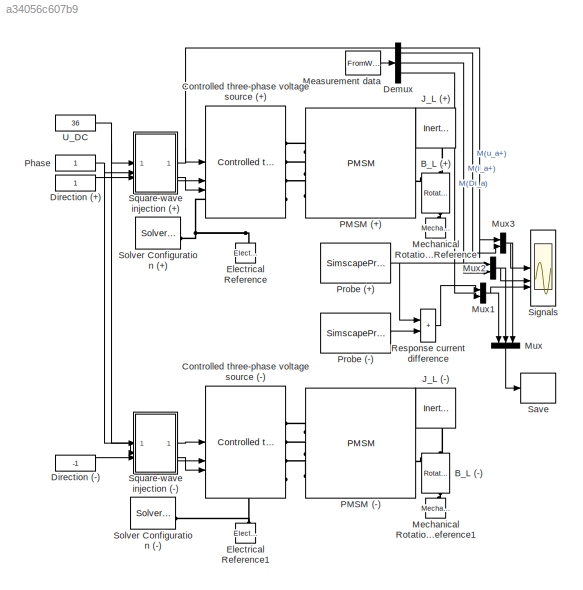
MODEL slx_a34056c607b9
KIND model
CONFIG AbsTol = auto
CONFIG EnableMultiTasking = off
CONFIG FixedStep = auto
CONFIG InitFcn = % Loading the measurement data\nload('MeasurementData.mat', 'PM')
CONFIG MaxStep = 5e-8
CONFIG MinStep = auto
CONFIG RelTol = 1e-5
CONFIG SampleTimeConstraint = Unconstrained
CONFIG SolverName = VariableStepAuto
CONFIG StartTime = 0.0
CONFIG StopTime = 500e-6
BLOCK [Reference] B_L (+)  REF=fl_lib/Mechanical/Rotational Elements/Rotational Damper
  NameLocation = right
  SourceBlock = fl_lib/Mechanical/Rotational Elements/Rotational Damper
  SourceType = Rotational Damper
BLOCK [Reference] B_L (-)  REF=fl_lib/Mechanical/Rotational Elements/Rotational Damper
  NameLocation = right
  SourceBlock = fl_lib/Mechanical/Rotational Elements/Rotational Damper
  SourceType = Rotational Damper
BLOCK [Reference] Controlled three-phase voltage source (+)  REF=SLSS/Power electronics/Controlled three-phase voltage source
  NameLocation = top
  SourceBlock = SLSS/Power electronics/Controlled three-phase voltage source
  SourceType = SubSystem
BLOCK [Reference] Controlled three-phase voltage source (-)  REF=SLSS/Power electronics/Controlled three-phase voltage source
  NameLocation = top
  SourceBlock = SLSS/Power electronics/Controlled three-phase voltage source
  SourceType = SubSystem
BLOCK [Demux] Demux
  Outputs = 3
BLOCK [Constant] Direction (+)
BLOCK [Constant] Direction (-)
  Value = -1
BLOCK [Reference] Electrical Reference  REF=fl_lib/Electrical/Electrical Elements/Electrical Reference
  NameLocation = right
  SourceBlock = fl_lib/Electrical/Electrical Elements/Electrical Reference
  SourceType = Electrical Reference
BLOCK [Reference] Electrical Reference1  REF=fl_lib/Electrical/Electrical Elements/Electrical Reference
  NameLocation = right
  SourceBlock = fl_lib/Electrical/Electrical Elements/Electrical Reference
  SourceType = Electrical Reference
BLOCK [Reference] J_L (+)  REF=fl_lib/Mechanical/Rotational Elements/Inertia
  NameLocation = right
  SourceBlock = fl_lib/Mechanical/Rotational Elements/Inertia
  SourceType = Inertia
BLOCK [Reference] J_L (-)  REF=fl_lib/Mechanical/Rotational Elements/Inertia
  NameLocation = right
  SourceBlock = fl_lib/Mechanical/Rotational Elements/Inertia
  SourceType = Inertia
BLOCK [FromWorkspace] Measurement data
  Interpolate = off
  OutputAfterFinalValue = Setting to zero
  SampleTime = -1
  VariableName = PM
BLOCK [Reference] Mechanical Rotational Reference  REF=fl_lib/Mechanical/Rotational Elements/Mechanical
Rotational Reference
  NameLocation = right
  SourceBlock = fl_lib/Mechanical/Rotational Elements/Mechanical\nRotational Reference
  SourceType = Mechanical\nRotational Reference
BLOCK [Reference] Mechanical Rotational Reference1  REF=fl_lib/Mechanical/Rotational Elements/Mechanical
Rotational Reference
  NameLocation = right
  SourceBlock = fl_lib/Mechanical/Rotational Elements/Mechanical\nRotational Reference
  SourceType = Mechanical\nRotational Reference
BLOCK [Mux] Mux
  DisplayOption = bar
  Inputs = 3
  NameLocation = left
BLOCK [Mux] Mux1
  DisplayOption = bar
  Inputs = 2
BLOCK [Mux] Mux2
  DisplayOption = bar
  Inputs = 2
BLOCK [Mux] Mux3
  DisplayOption = bar
  Inputs = 2
BLOCK [Reference] PMSM (+)  REF=PMSM/PMSM
  SourceBlock = PMSM/PMSM
  SourceType = PMSM
BLOCK [Reference] PMSM (-)  REF=PMSM/PMSM
  SourceBlock = PMSM/PMSM
  SourceType = PMSM
BLOCK [Constant] Phase
  NameLocation = top
BLOCK [SimscapeProbe] Probe (+)
  BoundBlock = 432
  Variables = {i_a}
BLOCK [SimscapeProbe] Probe (-)
  BoundBlock = 433
  Variables = {i_a}
BLOCK [Sum] Response current difference
  IconShape = rectangular
BLOCK [ToWorkspace] Save
  FixptAsFi = on
  MaxDataPoints = inf
  SampleTime = 1/240000
  VariableName = PO
BLOCK [Scope] Signals
  Floating = off
  NumInputPorts = 3
  ScopeSpecificationString = Simulink.scopes.TimeScopeBlockCfg('CurrentConfiguration', extmgr.ConfigurationSet(extmgr.Configuration('Core','General UI',true),extmgr.Configuration('Core','Source UI',true),extmgr.Configuration('Sources','WiredSimulink',true,'DataLoggingVariableName','ScopeData2'),extmgr.Configuration('Visuals','Time Domain',true,'SerializedDisplays',{struct('MinYLimReal','-30.93618','MaxYLimReal','38.42564','YL...<+2895ch>
BLOCK [Reference] Solver Configuration (+)  REF=nesl_utility/Solver
Configuration
  SourceBlock = nesl_utility/Solver\nConfiguration
  SourceType = Solver\nConfiguration
BLOCK [Reference] Solver Configuration (-)  REF=nesl_utility/Solver
Configuration
  SourceBlock = nesl_utility/Solver\nConfiguration
  SourceType = Solver\nConfiguration
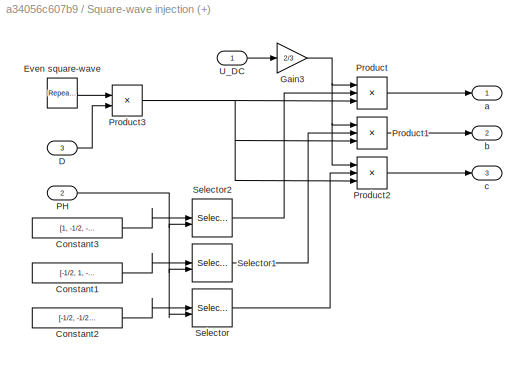
BLOCK [SubSystem] Square-wave injection (+)
  NameLocation = top
BLOCK [Constant] Square-wave injection (+)/Constant1
  Value = [-1/2, 1, -1/2]
BLOCK [Constant] Square-wave injection (+)/Constant2
  Value = [-1/2, -1/2, 1]
BLOCK [Constant] Square-wave injection (+)/Constant3
  Value = [1, -1/2, -1/2]
BLOCK [Inport] Square-wave injection (+)/D
  Port = 3
BLOCK [Reference] Square-wave injection (+)/Even square-wave  REF=simulink/Sources/Repeating
Sequence
  SourceBlock = simulink/Sources/Repeating\nSequence
  SourceType = Repeating table
BLOCK [Gain] Square-wave injection (+)/Gain3
  Gain = 2/3
BLOCK [Inport] Square-wave injection (+)/PH
  Port = 2
BLOCK [Product] Square-wave injection (+)/Product
  Inputs = 3
BLOCK [Product] Square-wave injection (+)/Product1
  Inputs = 3
BLOCK [Product] Square-wave injection (+)/Product2
  Inputs = 3
BLOCK [Product] Square-wave injection (+)/Product3
BLOCK [Selector] Square-wave injection (+)/Selector
  IndexOptions = Index vector (port)
  Indices = [1 3]
  InputPortWidth = 3
  OutputSizes = 1
BLOCK [Selector] Square-wave injection (+)/Selector1
  IndexOptions = Index vector (port)
  Indices = [1 3]
  InputPortWidth = 3
  OutputSizes = 1
BLOCK [Selector] Square-wave injection (+)/Selector2
  IndexOptions = Index vector (port)
  Indices = [1 3]
  InputPortWidth = 3
  OutputSizes = 1
BLOCK [Inport] Square-wave injection (+)/U_DC
BLOCK [Outport] Square-wave injection (+)/a
BLOCK [Outport] Square-wave injection (+)/b
  Port = 2
BLOCK [Outport] Square-wave injection (+)/c
  Port = 3
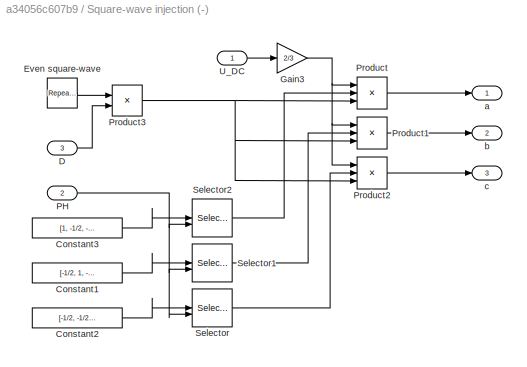
BLOCK [SubSystem] Square-wave injection (-)
  NameLocation = top
BLOCK [Constant] Square-wave injection (-)/Constant1
  Value = [-1/2, 1, -1/2]
BLOCK [Constant] Square-wave injection (-)/Constant2
  Value = [-1/2, -1/2, 1]
BLOCK [Constant] Square-wave injection (-)/Constant3
  Value = [1, -1/2, -1/2]
BLOCK [Inport] Square-wave injection (-)/D
  Port = 3
BLOCK [Reference] Square-wave injection (-)/Even square-wave  REF=simulink/Sources/Repeating
Sequence
  SourceBlock = simulink/Sources/Repeating\nSequence
  SourceType = Repeating table
BLOCK [Gain] Square-wave injection (-)/Gain3
  Gain = 2/3
BLOCK [Inport] Square-wave injection (-)/PH
  Port = 2
BLOCK [Product] Square-wave injection (-)/Product
  Inputs = 3
BLOCK [Product] Square-wave injection (-)/Product1
  Inputs = 3
BLOCK [Product] Square-wave injection (-)/Product2
  Inputs = 3
BLOCK [Product] Square-wave injection (-)/Product3
BLOCK [Selector] Square-wave injection (-)/Selector
  IndexOptions = Index vector (port)
  Indices = [1 3]
  InputPortWidth = 3
  OutputSizes = 1
BLOCK [Selector] Square-wave injection (-)/Selector1
  IndexOptions = Index vector (port)
  Indices = [1 3]
  InputPortWidth = 3
  OutputSizes = 1
BLOCK [Selector] Square-wave injection (-)/Selector2
  IndexOptions = Index vector (port)
  Indices = [1 3]
  InputPortWidth = 3
  OutputSizes = 1
BLOCK [Inport] Square-wave injection (-)/U_DC
BLOCK [Outport] Square-wave injection (-)/a
BLOCK [Outport] Square-wave injection (-)/b
  Port = 2
BLOCK [Outport] Square-wave injection (-)/c
  Port = 3
BLOCK [Constant] U_DC
  NameLocation = top
  Value = 36
LINE Demux:1 -> Mux3:2
LINE Demux:2 -> Mux2:2
LINE Demux:3 -> Mux1:2
LINE Direction (+):1 -> Square-wave injection (+):3
LINE Direction (-):1 -> Square-wave injection (-):3
LINE Measurement data:1 -> Demux:1
NET Mux1:1 -> Mux:1, Signals:3
NET Mux2:1 -> Mux:2, Signals:2
NET Mux3:1 -> Mux:3, Signals:1
LINE Mux:1 -> Save:1
NET Phase:1 -> Square-wave injection (+):2, Square-wave injection (-):2
NET Probe (+):1 -> Mux2:1, Response current difference:1
LINE Probe (-):1 -> Response current difference:2
LINE Response current difference:1 -> Mux1:1
LINE Square-wave injection (+)/Constant1:1 -> Square-wave injection (+)/Selector1:1
LINE Square-wave injection (+)/Constant2:1 -> Square-wave injection (+)/Selector:1
LINE Square-wave injection (+)/Constant3:1 -> Square-wave injection (+)/Selector2:1
LINE Square-wave injection (+)/D:1 -> Square-wave injection (+)/Product3:2
LINE Square-wave injection (+)/Even square-wave:1 -> Square-wave injection (+)/Product3:1
NET Square-wave injection (+)/Gain3:1 -> Square-wave injection (+)/Product1:1, Square-wave injection (+)/Product2:1, Square-wave injection (+)/Product:1
NET Square-wave injection (+)/PH:1 -> Square-wave injection (+)/Selector1:2, Square-wave injection (+)/Selector2:2, Square-wave injection (+)/Selector:2
LINE Square-wave injection (+)/Product1:1 -> Square-wave injection (+)/b:1
LINE Square-wave injection (+)/Product2:1 -> Square-wave injection (+)/c:1
NET Square-wave injection (+)/Product3:1 -> Square-wave injection (+)/Product1:3, Square-wave injection (+)/Product2:3, Square-wave injection (+)/Product:3
LINE Square-wave injection (+)/Product:1 -> Square-wave injection (+)/a:1
LINE Square-wave injection (+)/Selector1:1 -> Square-wave injection (+)/Product1:2
LINE Square-wave injection (+)/Selector2:1 -> Square-wave injection (+)/Product:2
LINE Square-wave injection (+)/Selector:1 -> Square-wave injection (+)/Product2:2
LINE Square-wave injection (+)/U_DC:1 -> Square-wave injection (+)/Gain3:1
NET Square-wave injection (+):1 -> Controlled three-phase voltage source (+):1, Mux3:1
LINE Square-wave injection (+):2 -> Controlled three-phase voltage source (+):2
LINE Square-wave injection (+):3 -> Controlled three-phase voltage source (+):3
LINE Square-wave injection (-)/Constant1:1 -> Square-wave injection (-)/Selector1:1
LINE Square-wave injection (-)/Constant2:1 -> Square-wave injection (-)/Selector:1
LINE Square-wave injection (-)/Constant3:1 -> Square-wave injection (-)/Selector2:1
LINE Square-wave injection (-)/D:1 -> Square-wave injection (-)/Product3:2
LINE Square-wave injection (-)/Even square-wave:1 -> Square-wave injection (-)/Product3:1
NET Square-wave injection (-)/Gain3:1 -> Square-wave injection (-)/Product1:1, Square-wave injection (-)/Product2:1, Square-wave injection (-)/Product:1
NET Square-wave injection (-)/PH:1 -> Square-wave injection (-)/Selector1:2, Square-wave injection (-)/Selector2:2, Square-wave injection (-)/Selector:2
LINE Square-wave injection (-)/Product1:1 -> Square-wave injection (-)/b:1
LINE Square-wave injection (-)/Product2:1 -> Square-wave injection (-)/c:1
NET Square-wave injection (-)/Product3:1 -> Square-wave injection (-)/Product1:3, Square-wave injection (-)/Product2:3, Square-wave injection (-)/Product:3
LINE Square-wave injection (-)/Product:1 -> Square-wave injection (-)/a:1
LINE Square-wave injection (-)/Selector1:1 -> Square-wave injection (-)/Product1:2
LINE Square-wave injection (-)/Selector2:1 -> Square-wave injection (-)/Product:2
LINE Square-wave injection (-)/Selector:1 -> Square-wave injection (-)/Product2:2
LINE Square-wave injection (-)/U_DC:1 -> Square-wave injection (-)/Gain3:1
LINE Square-wave injection (-):1 -> Controlled three-phase voltage source (-):1
LINE Square-wave injection (-):2 -> Controlled three-phase voltage source (-):2
LINE Square-wave injection (-):3 -> Controlled three-phase voltage source (-):3
NET U_DC:1 -> Square-wave injection (+):1, Square-wave injection (-):1
PNET net1: B_L (+):LConn1 -- J_L (+):LConn1 -- PMSM (+):RConn1
PLINE B_L (+):RConn1 -- Mechanical Rotational Reference:LConn1
PNET net2: B_L (-):LConn1 -- J_L (-):LConn1 -- PMSM (-):RConn1
PLINE B_L (-):RConn1 -- Mechanical Rotational Reference1:LConn1
PLINE Controlled three-phase voltage source (+):RConn1 -- PMSM (+):LConn1
PLINE Controlled three-phase voltage source (+):RConn2 -- PMSM (+):LConn2
PLINE Controlled three-phase voltage source (+):RConn3 -- PMSM (+):LConn3
PNET net3: Controlled three-phase voltage source (+):RConn4 -- Electrical Reference:LConn1 -- Solver Configuration (+):RConn1
PLINE Controlled three-phase voltage source (-):RConn1 -- PMSM (-):LConn1
PLINE Controlled three-phase voltage source (-):RConn2 -- PMSM (-):LConn2
PLINE Controlled three-phase voltage source (-):RConn3 -- PMSM (-):LConn3
PNET net4: Controlled three-phase voltage source (-):RConn4 -- Electrical Reference1:LConn1 -- Solver Configuration (-):RConn1
note: NET lines group one-source signal fan-out (src -> all destinations, sorted); 1:1 wires keep LINE; PNET lines group multi-terminal physical nets as a canonical sorted terminal list (undirected conserving connections); 2-terminal nets keep the pairwise PLINE form
